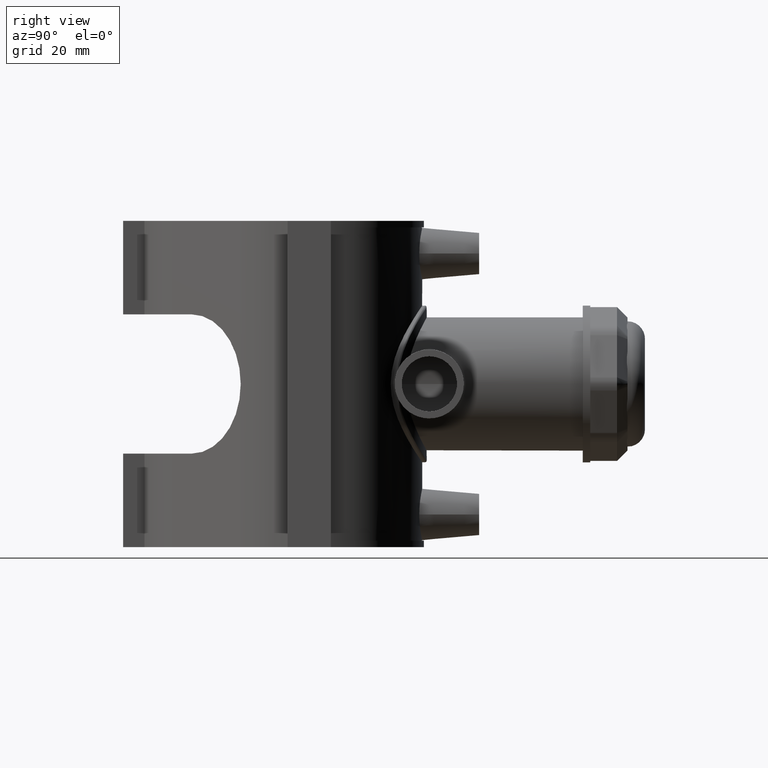
[diagram: clean part render]
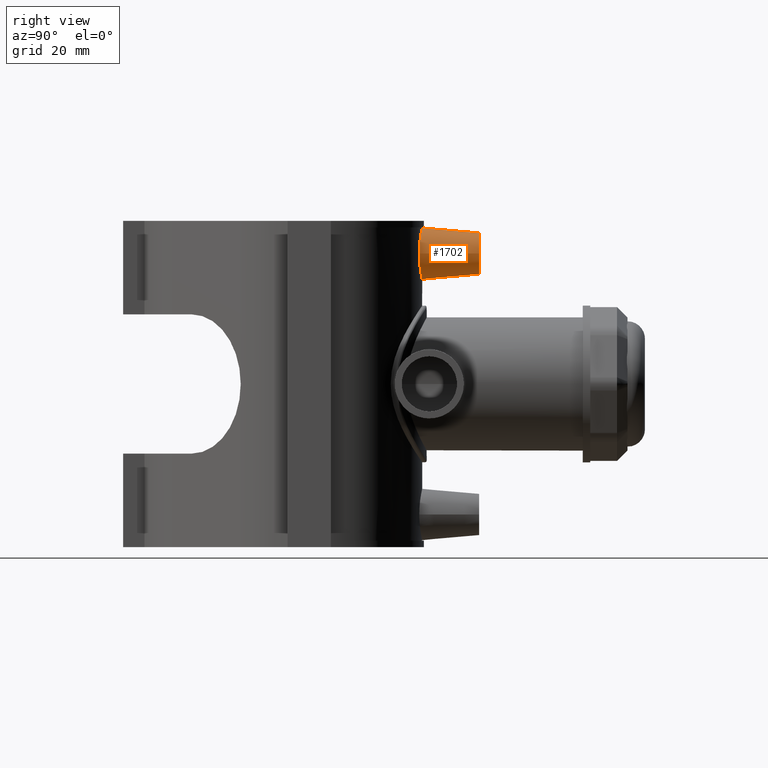
[diagram: same view with one face highlighted and labeled with its STEP entity id]
A machine part, right view. The second image highlights one B-rep face of the part: STEP entity #1702.
In plain terms, the highlighted conical surface has half-angle 5 deg.
Its self-contained STEP definition (entity closure, byte-faithful):
#27=CONICAL_SURFACE('',#1858,7.5,5.);
#427=CIRCLE('',#1859,7.5);
#468=FACE_BOUND('',#664,.T.);
#541=FACE_OUTER_BOUND('',#663,.T.);
#663=EDGE_LOOP('',(#1421));
#664=EDGE_LOOP('',(#1422));
#732=B_SPLINE_CURVE_WITH_KNOTS('',3,(#3284,#3285,#3286,#3287,#3288,#3289,
#3290,#3291,#3292,#3293,#3294,#3295,#3296,#3297,#3298,#3299,#3300,#3301,
#3302,#3303,#3304,#3305,#3306,#3307,#3308,#3309,#3310,#3311,#3312,#3313,
#3314,#3315,#3316,#3317),.UNSPECIFIED.,.T.,.F.,(4,2,2,2,2,2,2,2,2,2,2,2,
2,2,2,2,4),(0.,0.353852894610542,0.707705789221083,1.06066538155202,1.41362497388295,
1.76658456621388,2.11954415854481,2.47339705315535,2.82724994776589,3.18110284237644,
3.53495573698698,3.88791532931791,4.24087492164884,4.59383451397977,4.94679410631071,
5.30064700092125,5.65449989553179),.UNSPECIFIED.);
#826=VERTEX_POINT('',#3283);
#835=VERTEX_POINT('',#3345);
#1032=EDGE_CURVE('',#826,#826,#732,.T.);
#1044=EDGE_CURVE('',#835,#835,#427,.T.);
#1421=ORIENTED_EDGE('',*,*,#1044,.F.);
#1422=ORIENTED_EDGE('',*,*,#1032,.F.);
#1702=ADVANCED_FACE('',(#541,#468),#27,.T.);
#1858=AXIS2_PLACEMENT_3D('',#3344,#2230,#2231);
#1859=AXIS2_PLACEMENT_3D('',#3346,#2232,#2233);
#2230=DIRECTION('center_axis',(0.,-1.,0.));
#2231=DIRECTION('ref_axis',(1.,0.,0.));
#2232=DIRECTION('center_axis',(0.,1.,0.));
#2233=DIRECTION('ref_axis',(1.,0.,0.));
#3283=CARTESIAN_POINT('',(9.39342313935457,39.8580744859186,47.2));
#3284=CARTESIAN_POINT('Ctrl Pts',(-9.39342313935457,39.8580744859186,47.2));
#3285=CARTESIAN_POINT('Ctrl Pts',(-9.39342313935457,39.8580744859186,46.0204903512982));
#3286=CARTESIAN_POINT('Ctrl Pts',(-9.15274439597766,39.9171062901089,44.7669437685318));
#3287=CARTESIAN_POINT('Ctrl Pts',(-8.18404382314239,40.1269176857349,42.4703489341956));
#3288=CARTESIAN_POINT('Ctrl Pts',(-7.45632861315207,40.2743333641686,41.4268652946119));
#3289=CARTESIAN_POINT('Ctrl Pts',(-5.78806114370251,40.5476694848907,39.7857976100099));
#3290=CARTESIAN_POINT('Ctrl Pts',(-4.73565733089039,40.6917099891878,39.0762222152903));
#3291=CARTESIAN_POINT('Ctrl Pts',(-2.43004661726965,40.8942121231921,38.1342871996621));
#3292=CARTESIAN_POINT('Ctrl Pts',(-1.17653197443644,40.95,37.9021079645423));
#3293=CARTESIAN_POINT('Ctrl Pts',(1.17653197443644,40.95,37.9021079645423));
#3294=CARTESIAN_POINT('Ctrl Pts',(2.43004661726965,40.8942121231921,38.1342871996621));
#3295=CARTESIAN_POINT('Ctrl Pts',(4.73565733089039,40.6917099891878,39.0762222152903));
#3296=CARTESIAN_POINT('Ctrl Pts',(5.78806114370251,40.5476694848907,39.78579761001));
#3297=CARTESIAN_POINT('Ctrl Pts',(7.45632861315207,40.2743333641686,41.4268652946119));
#3298=CARTESIAN_POINT('Ctrl Pts',(8.18404382314239,40.1269176857349,42.4703489341956));
#3299=CARTESIAN_POINT('Ctrl Pts',(9.15274439597767,39.9171062901089,44.7669437685318));
#3300=CARTESIAN_POINT('Ctrl Pts',(9.39342313935457,39.8580744859186,46.0204903512982));
#3301=CARTESIAN_POINT('Ctrl Pts',(9.39342313935457,39.8580744859186,48.3795096487018));
#3302=CARTESIAN_POINT('Ctrl Pts',(9.15274439597767,39.9171062901089,49.6330562314682));
#3303=CARTESIAN_POINT('Ctrl Pts',(8.18404382314239,40.1269176857349,51.9296510658044));
#3304=CARTESIAN_POINT('Ctrl Pts',(7.45632861315207,40.2743333641686,52.9731347053881));
#3305=CARTESIAN_POINT('Ctrl Pts',(5.78806114370251,40.5476694848907,54.6142023899901));
#3306=CARTESIAN_POINT('Ctrl Pts',(4.73565733089039,40.6917099891878,55.3237777847097));
#3307=CARTESIAN_POINT('Ctrl Pts',(2.43004661726965,40.8942121231921,56.2657128003379));
#3308=CARTESIAN_POINT('Ctrl Pts',(1.17653197443644,40.95,56.4978920354578));
#3309=CARTESIAN_POINT('Ctrl Pts',(-1.17653197443644,40.95,56.4978920354578));
#3310=CARTESIAN_POINT('Ctrl Pts',(-2.43004661726965,40.8942121231921,56.2657128003379));
#3311=CARTESIAN_POINT('Ctrl Pts',(-4.73565733089039,40.6917099891878,55.3237777847097));
#3312=CARTESIAN_POINT('Ctrl Pts',(-5.78806114370251,40.5476694848907,54.6142023899901));
#3313=CARTESIAN_POINT('Ctrl Pts',(-7.45632861315207,40.2743333641686,52.9731347053881));
#3314=CARTESIAN_POINT('Ctrl Pts',(-8.18404382314238,40.1269176857349,51.9296510658044));
#3315=CARTESIAN_POINT('Ctrl Pts',(-9.15274439597766,39.9171062901089,49.6330562314682));
#3316=CARTESIAN_POINT('Ctrl Pts',(-9.39342313935457,39.8580744859186,48.3795096487018));
#3317=CARTESIAN_POINT('Ctrl Pts',(-9.39342313935457,39.8580744859186,47.2));
#3344=CARTESIAN_POINT('Origin',(0.,61.5,47.2));
#3345=CARTESIAN_POINT('',(-7.5,61.5,47.2));
#3346=CARTESIAN_POINT('Origin',(0.,61.5,47.2));